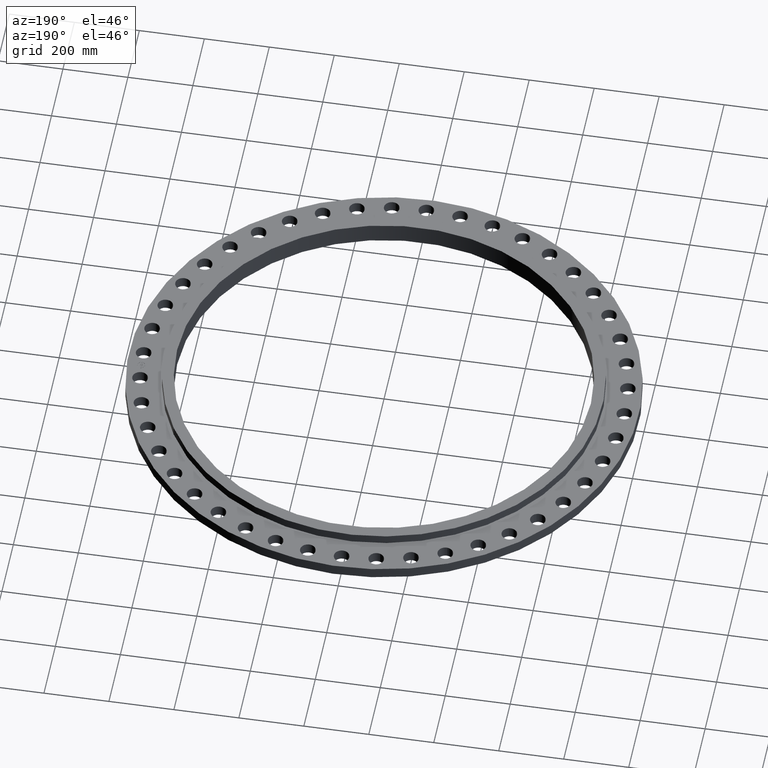
[diagram: clean part render]
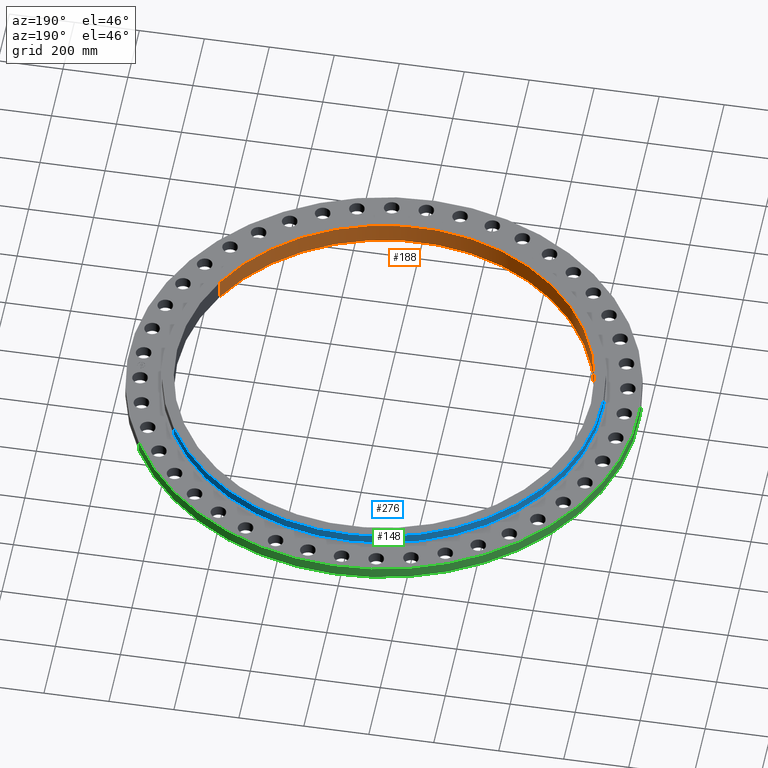
[diagram: same view with three faces highlighted in distinct colors, each labeled with its STEP entity id]
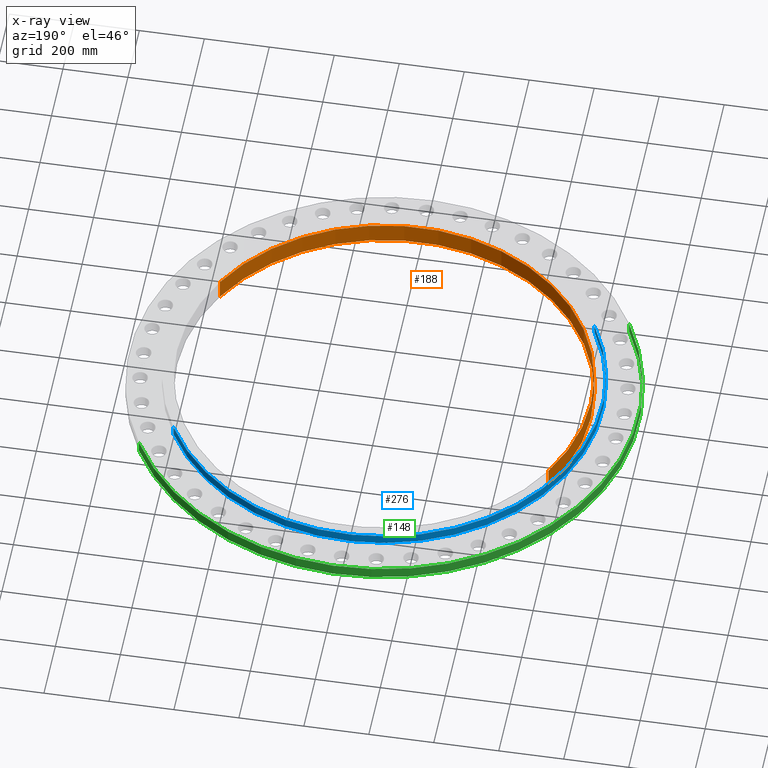
[diagram: x-ray of the same camera — body ghosted, the three highlighted faces saturated]
A machine part, auxiliary view with three faces highlighted in distinct colors.
The next image is the same camera in x-ray (body ghosted, the three faces saturated) — at least one of them is partly hidden behind the body in this view.
Their STEP definitions:

[orange] entity #188 — the highlighted cylindrical surface (partial cylindrical patch) has radius 637.413 mm, axis along (0, -0, -1).
#152=AXIS2_PLACEMENT_3D('Cylinder Axis2P3D',#149,#150,#151) ;
#165=AXIS2_PLACEMENT_3D('Circle Axis2P3D',#163,#164,$) ;
#179=AXIS2_PLACEMENT_3D('Circle Axis2P3D',#177,#178,$) ;
#149=CARTESIAN_POINT('Axis2P3D Location',(-6.64385432059E-016,-2.09805925913E-016,1.37106299213)) ;
#154=CARTESIAN_POINT('Line Origine',(22.0229343907,-12.0311838913,1.25000000001)) ;
#158=CARTESIAN_POINT('Vertex',(22.0229343907,-12.0311838913,0.)) ;
#160=CARTESIAN_POINT('Vertex',(22.0229343907,-12.0311838913,2.50000000001)) ;
#163=CARTESIAN_POINT('Axis2P3D Location',(-6.64385432059E-016,-2.09805925913E-016,0.)) ;
#167=CARTESIAN_POINT('Vertex',(-22.0229343907,12.0311838913,0.)) ;
#170=CARTESIAN_POINT('Line Origine',(-22.0229343907,12.0311838913,1.25000000001)) ;
#174=CARTESIAN_POINT('Vertex',(-22.0229343907,12.0311838913,2.50000000001)) ;
#177=CARTESIAN_POINT('Axis2P3D Location',(-6.64385432059E-016,-2.09805925913E-016,2.50000000001)) ;
#150=DIRECTION('Axis2P3D Direction',(0.,-0.,-0.0393700787402)) ;
#151=DIRECTION('Axis2P3D XDirection',(-0.0345504945626,0.0188750212049,0.)) ;
#155=DIRECTION('Vector Direction',(0.,0.,-0.0393700787402)) ;
#164=DIRECTION('Axis2P3D Direction',(0.,-0.,-0.0393700787402)) ;
#171=DIRECTION('Vector Direction',(0.,0.,-0.0393700787402)) ;
#178=DIRECTION('Axis2P3D Direction',(0.,-0.,-0.0393700787402)) ;
#156=VECTOR('Line Direction',#155,0.0393700787402) ;
#172=VECTOR('Line Direction',#171,0.0393700787402) ;
#183=ORIENTED_EDGE('',*,*,#162,.F.) ;
#184=ORIENTED_EDGE('',*,*,#169,.F.) ;
#185=ORIENTED_EDGE('',*,*,#176,.T.) ;
#186=ORIENTED_EDGE('',*,*,#181,.T.) ;
#188=ADVANCED_FACE('PartBody',(#187),#153,.F.) ;
#166=CIRCLE('generated circle',#165,25.0950000001) ;
#180=CIRCLE('generated circle',#179,25.0950000001) ;
#153=CYLINDRICAL_SURFACE('generated cylinder',#152,25.0950000001) ;
#162=EDGE_CURVE('',#159,#161,#157,.F.) ;
#169=EDGE_CURVE('',#168,#159,#166,.F.) ;
#176=EDGE_CURVE('',#168,#175,#173,.F.) ;
#181=EDGE_CURVE('',#175,#161,#180,.F.) ;
#182=EDGE_LOOP('',(#183,#184,#185,#186)) ;
#187=FACE_OUTER_BOUND('',#182,.T.) ;
#157=LINE('Line',#154,#156) ;
#173=LINE('Line',#170,#172) ;
#159=VERTEX_POINT('',#158) ;
#161=VERTEX_POINT('',#160) ;
#168=VERTEX_POINT('',#167) ;
#175=VERTEX_POINT('',#174) ;

[blue] entity #276 — the highlighted cylindrical surface (partial cylindrical patch) has radius 673.1 mm, axis along (0, 0, 1).
#222=AXIS2_PLACEMENT_3D('Circle Axis2P3D',#220,#221,$) ;
#237=AXIS2_PLACEMENT_3D('Cylinder Axis2P3D',#234,#235,#236) ;
#267=AXIS2_PLACEMENT_3D('Circle Axis2P3D',#265,#266,$) ;
#215=CARTESIAN_POINT('Vertex',(-23.2559378902,-12.7047767731,2.50000000001)) ;
#217=CARTESIAN_POINT('Vertex',(23.2559378902,12.7047767731,2.50000000001)) ;
#220=CARTESIAN_POINT('Axis2P3D Location',(0.,0.,2.50000000001)) ;
#234=CARTESIAN_POINT('Axis2P3D Location',(0.,0.,1.25000000001)) ;
#239=CARTESIAN_POINT('Line Origine',(23.2559378902,12.7047767731,1.93750000001)) ;
#243=CARTESIAN_POINT('Vertex',(23.2559378902,12.7047767731,1.37500000001)) ;
#246=CARTESIAN_POINT('Line Origine',(-23.2559378902,-12.7047767731,1.93750000001)) ;
#250=CARTESIAN_POINT('Vertex',(-23.2559378902,-12.7047767731,1.37500000001)) ;
#265=CARTESIAN_POINT('Axis2P3D Location',(0.,0.,1.37500000001)) ;
#221=DIRECTION('Axis2P3D Direction',(0.,0.,0.0393700787402)) ;
#235=DIRECTION('Axis2P3D Direction',(0.,0.,0.0393700787402)) ;
#236=DIRECTION('Axis2P3D XDirection',(0.0345504945626,0.0188750212049,0.)) ;
#240=DIRECTION('Vector Direction',(0.,0.,0.0393700787402)) ;
#247=DIRECTION('Vector Direction',(0.,0.,0.0393700787402)) ;
#266=DIRECTION('Axis2P3D Direction',(0.,0.,0.0393700787402)) ;
#241=VECTOR('Line Direction',#240,0.0393700787402) ;
#248=VECTOR('Line Direction',#247,0.0393700787402) ;
#271=ORIENTED_EDGE('',*,*,#252,.T.) ;
#272=ORIENTED_EDGE('',*,*,#224,.F.) ;
#273=ORIENTED_EDGE('',*,*,#245,.F.) ;
#274=ORIENTED_EDGE('',*,*,#269,.T.) ;
#276=ADVANCED_FACE('PartBody',(#275),#238,.T.) ;
#223=CIRCLE('generated circle',#222,26.5000000001) ;
#268=CIRCLE('generated circle',#267,26.5000000001) ;
#238=CYLINDRICAL_SURFACE('generated cylinder',#237,26.5000000001) ;
#224=EDGE_CURVE('',#218,#216,#223,.T.) ;
#245=EDGE_CURVE('',#244,#218,#242,.T.) ;
#252=EDGE_CURVE('',#251,#216,#249,.T.) ;
#269=EDGE_CURVE('',#244,#251,#268,.T.) ;
#270=EDGE_LOOP('',(#271,#272,#273,#274)) ;
#275=FACE_OUTER_BOUND('',#270,.T.) ;
#242=LINE('Line',#239,#241) ;
#249=LINE('Line',#246,#248) ;
#216=VERTEX_POINT('',#215) ;
#218=VERTEX_POINT('',#217) ;
#244=VERTEX_POINT('',#243) ;
#251=VERTEX_POINT('',#250) ;

[green] entity #148 — the highlighted cylindrical surface (partial cylindrical patch) has radius 784.225 mm, axis along (0, 0, 1).
#95=AXIS2_PLACEMENT_3D('Cylinder Axis2P3D',#92,#93,#94) ;
#134=AXIS2_PLACEMENT_3D('Circle Axis2P3D',#132,#133,$) ;
#139=AXIS2_PLACEMENT_3D('Circle Axis2P3D',#137,#138,$) ;
#92=CARTESIAN_POINT('Axis2P3D Location',(0.,0.,1.25000000001)) ;
#97=CARTESIAN_POINT('Line Origine',(27.0953615985,14.8022635045,0.687500000003)) ;
#101=CARTESIAN_POINT('Vertex',(27.0953615985,14.8022635045,1.39870617276E-016)) ;
#103=CARTESIAN_POINT('Vertex',(27.0953615985,14.8022635045,1.37500000001)) ;
#110=CARTESIAN_POINT('Vertex',(-27.0953615985,-14.8022635045,1.37500000001)) ;
#113=CARTESIAN_POINT('Line Origine',(-27.0953615985,-14.8022635045,0.687500000003)) ;
#117=CARTESIAN_POINT('Vertex',(-27.0953615985,-14.8022635045,1.39870617276E-016)) ;
#132=CARTESIAN_POINT('Axis2P3D Location',(0.,0.,1.37500000001)) ;
#137=CARTESIAN_POINT('Axis2P3D Location',(0.,0.,0.)) ;
#93=DIRECTION('Axis2P3D Direction',(0.,0.,0.0393700787402)) ;
#94=DIRECTION('Axis2P3D XDirection',(0.0345504945626,0.0188750212049,0.)) ;
#98=DIRECTION('Vector Direction',(0.,0.,0.0393700787402)) ;
#114=DIRECTION('Vector Direction',(0.,0.,0.0393700787402)) ;
#133=DIRECTION('Axis2P3D Direction',(0.,0.,0.0393700787402)) ;
#138=DIRECTION('Axis2P3D Direction',(0.,0.,0.0393700787402)) ;
#99=VECTOR('Line Direction',#98,0.0393700787402) ;
#115=VECTOR('Line Direction',#114,0.0393700787402) ;
#143=ORIENTED_EDGE('',*,*,#119,.T.) ;
#144=ORIENTED_EDGE('',*,*,#136,.F.) ;
#145=ORIENTED_EDGE('',*,*,#105,.F.) ;
#146=ORIENTED_EDGE('',*,*,#141,.T.) ;
#148=ADVANCED_FACE('PartBody',(#147),#96,.T.) ;
#135=CIRCLE('generated circle',#134,30.8750000001) ;
#140=CIRCLE('generated circle',#139,30.8750000001) ;
#96=CYLINDRICAL_SURFACE('generated cylinder',#95,30.8750000001) ;
#105=EDGE_CURVE('',#102,#104,#100,.T.) ;
#119=EDGE_CURVE('',#118,#111,#116,.T.) ;
#136=EDGE_CURVE('',#104,#111,#135,.T.) ;
#141=EDGE_CURVE('',#102,#118,#140,.T.) ;
#142=EDGE_LOOP('',(#143,#144,#145,#146)) ;
#147=FACE_OUTER_BOUND('',#142,.T.) ;
#100=LINE('Line',#97,#99) ;
#116=LINE('Line',#113,#115) ;
#102=VERTEX_POINT('',#101) ;
#104=VERTEX_POINT('',#103) ;
#111=VERTEX_POINT('',#110) ;
#118=VERTEX_POINT('',#117) ;